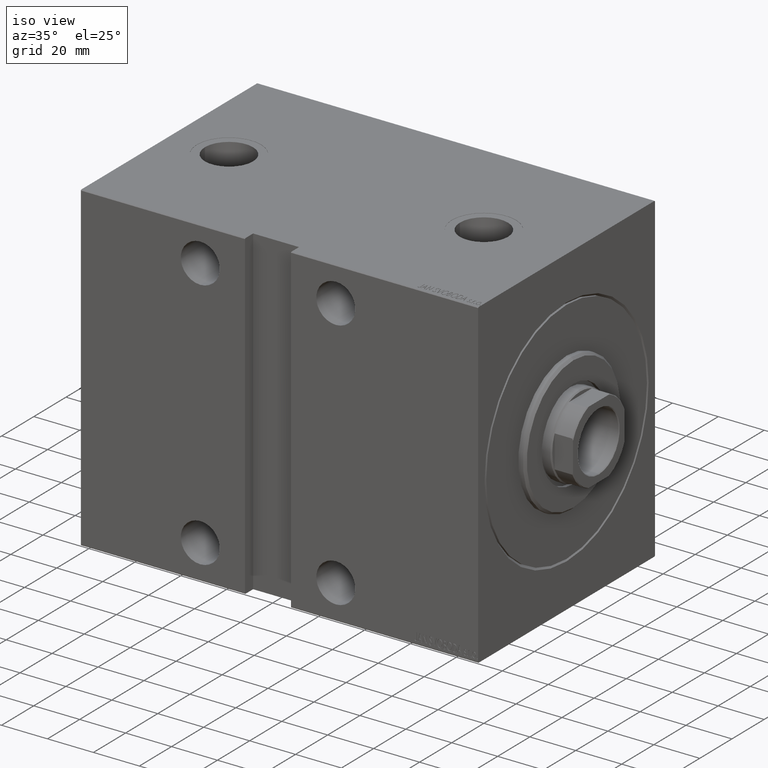
[diagram: clean part render]
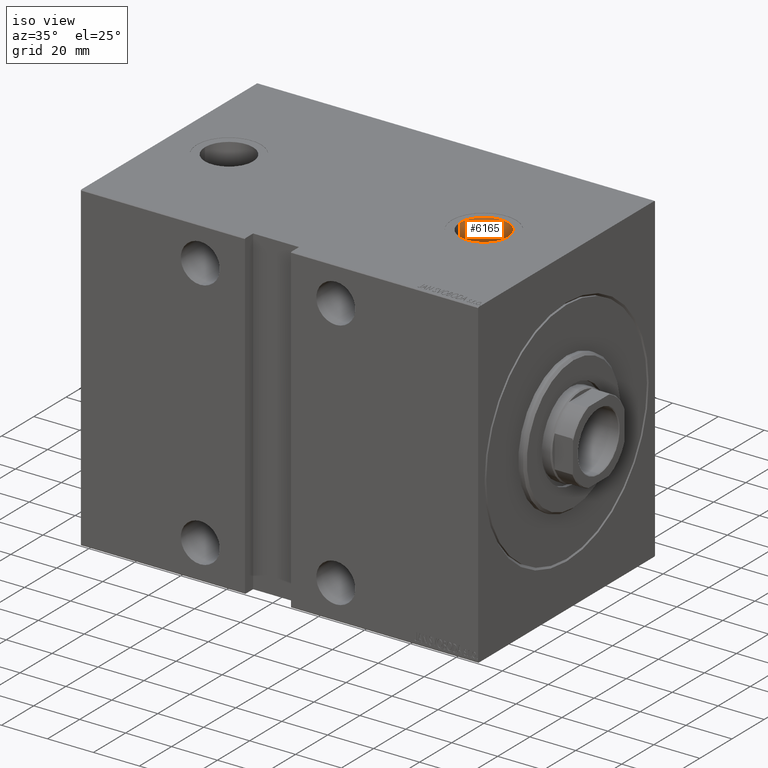
[diagram: same view with one face highlighted and labeled with its STEP entity id]
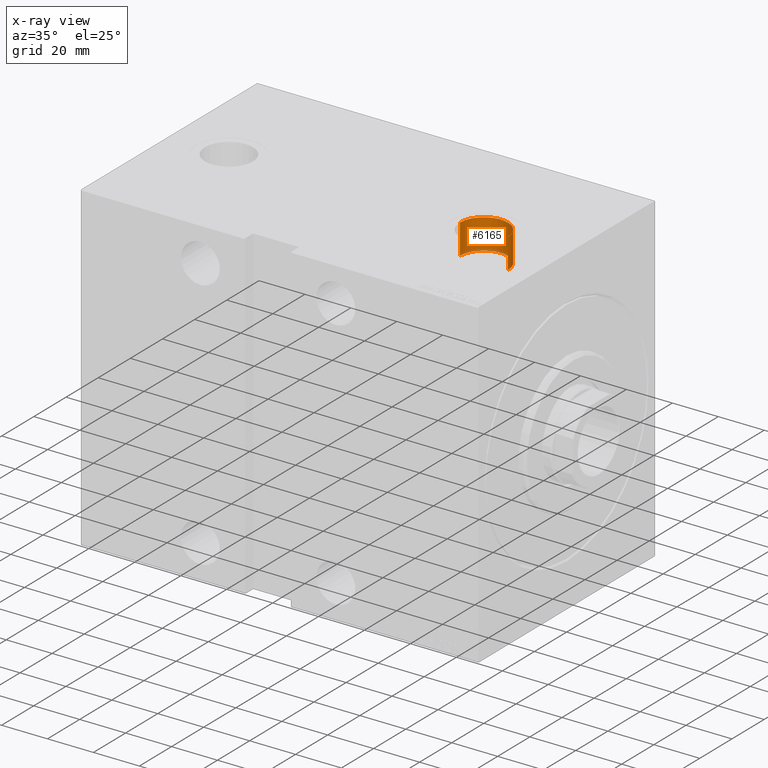
[diagram: x-ray of the same camera — body ghosted, the highlighted face saturated]
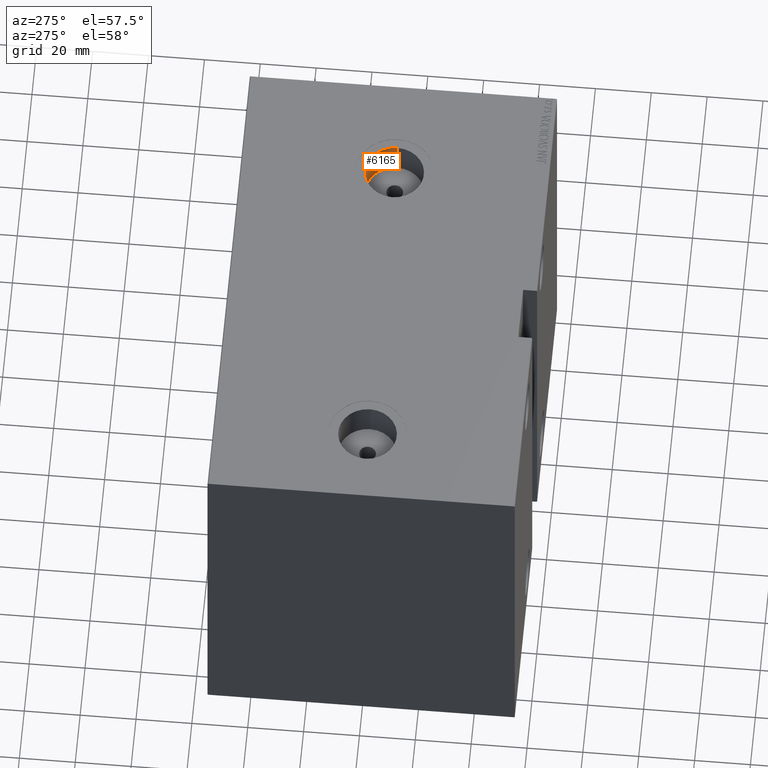
[diagram: same view with one face highlighted and labeled with its STEP entity id]
A machine part, iso view. The second image highlights one B-rep face of the part: STEP entity #6165.
The next image is the same camera in x-ray: the body ghosted, the highlighted face saturated — about 5% of this face is hidden behind the body in this view.
A second angle (auxiliary view) of the same face is appended — the face is thin or edge-on in the first view.
In plain terms, the highlighted cylindrical surface (edge-blend (fillet) strip) has radius 10.48 mm, axis along (0, 0, 1).
Its self-contained STEP definition (entity closure, byte-faithful):
#759 = ORIENTED_EDGE ( 'NONE', *, *, #20379, .T. ) ;
#3463 = FACE_OUTER_BOUND ( 'NONE', #24514, .T. ) ;
#4493 = CARTESIAN_POINT ( 'NONE',  ( 36.00000000000000000, -8.831319514063746929E-15, 69.90000000000000568 ) ) ;
#6165 = ADVANCED_FACE ( 'NONE', ( #3463 ), #17151, .F. ) ;
#7328 = EDGE_CURVE ( 'NONE', #22478, #31392, #39221, .T. ) ;
#7815 = CARTESIAN_POINT ( 'NONE',  ( 25.52000000000000313, -7.547889668557321440E-15, 56.74000000000000909 ) ) ;
#8606 = CARTESIAN_POINT ( 'NONE',  ( 25.52000000000000313, -7.547889668557321440E-15, 56.74000000000000909 ) ) ;
#12903 = CARTESIAN_POINT ( 'NONE',  ( 25.52000000000000313, -7.547889668557321440E-15, 69.90000000000000568 ) ) ;
#15574 = AXIS2_PLACEMENT_3D ( 'NONE', #30831, #17368, #27462 ) ;
#15840 = CARTESIAN_POINT ( 'NONE',  ( 36.00000000000000000, -8.831319514063746929E-15, 56.74000000000000909 ) ) ;
#16611 = VERTEX_POINT ( 'NONE', #29614 ) ;
#17151 = CYLINDRICAL_SURFACE ( 'NONE', #15574, 10.47999999999999687 ) ;
#17368 = DIRECTION ( 'NONE',  ( -0.000000000000000000, -0.000000000000000000, 1.000000000000000000 ) ) ;
#17439 = CARTESIAN_POINT ( 'NONE',  ( 46.47999999999999687, -8.831319514063746929E-15, 69.90000000000000568 ) ) ;
#19180 = AXIS2_PLACEMENT_3D ( 'NONE', #4493, #38826, #39049 ) ;
#19788 = CIRCLE ( 'NONE', #35542, 10.47999999999999687 ) ;
#19856 = VECTOR ( 'NONE', #25858, 1000.000000000000000 ) ;
#20379 = EDGE_CURVE ( 'NONE', #36012, #22478, #32376, .T. ) ;
#22361 = DIRECTION ( 'NONE',  ( 1.000000000000000000, 0.000000000000000000, 0.000000000000000000 ) ) ;
#22478 = VERTEX_POINT ( 'NONE', #12903 ) ;
#24514 = EDGE_LOOP ( 'NONE', ( #43874, #759, #35663, #43978 ) ) ;
#25858 = DIRECTION ( 'NONE',  ( -0.000000000000000000, -0.000000000000000000, 1.000000000000000000 ) ) ;
#27462 = DIRECTION ( 'NONE',  ( 1.000000000000000000, 0.000000000000000000, 0.000000000000000000 ) ) ;
#28560 = DIRECTION ( 'NONE',  ( -0.000000000000000000, -0.000000000000000000, 1.000000000000000000 ) ) ;
#29443 = CARTESIAN_POINT ( 'NONE',  ( 46.47999999999999687, -8.831319514063746929E-15, 56.74000000000000909 ) ) ;
#29614 = CARTESIAN_POINT ( 'NONE',  ( 46.47999999999999687, -8.831319514063746929E-15, 56.74000000000000909 ) ) ;
#29654 = LINE ( 'NONE', #29443, #19856 ) ;
#30831 = CARTESIAN_POINT ( 'NONE',  ( 36.00000000000000000, -8.831319514063746929E-15, 56.74000000000000909 ) ) ;
#31392 = VERTEX_POINT ( 'NONE', #17439 ) ;
#32376 = LINE ( 'NONE', #8606, #40369 ) ;
#35542 = AXIS2_PLACEMENT_3D ( 'NONE', #15840, #42974, #22361 ) ;
#35663 = ORIENTED_EDGE ( 'NONE', *, *, #7328, .T. ) ;
#36012 = VERTEX_POINT ( 'NONE', #7815 ) ;
#36324 = EDGE_CURVE ( 'NONE', #36012, #16611, #19788, .T. ) ;
#38826 = DIRECTION ( 'NONE',  ( 0.000000000000000000, 0.000000000000000000, 1.000000000000000000 ) ) ;
#39049 = DIRECTION ( 'NONE',  ( 1.000000000000000000, 0.000000000000000000, 0.000000000000000000 ) ) ;
#39221 = CIRCLE ( 'NONE', #19180, 10.47999999999999687 ) ;
#40369 = VECTOR ( 'NONE', #28560, 1000.000000000000000 ) ;
#42974 = DIRECTION ( 'NONE',  ( 0.000000000000000000, 0.000000000000000000, 1.000000000000000000 ) ) ;
#43596 = EDGE_CURVE ( 'NONE', #16611, #31392, #29654, .T. ) ;
#43874 = ORIENTED_EDGE ( 'NONE', *, *, #36324, .F. ) ;
#43978 = ORIENTED_EDGE ( 'NONE', *, *, #43596, .F. ) ;